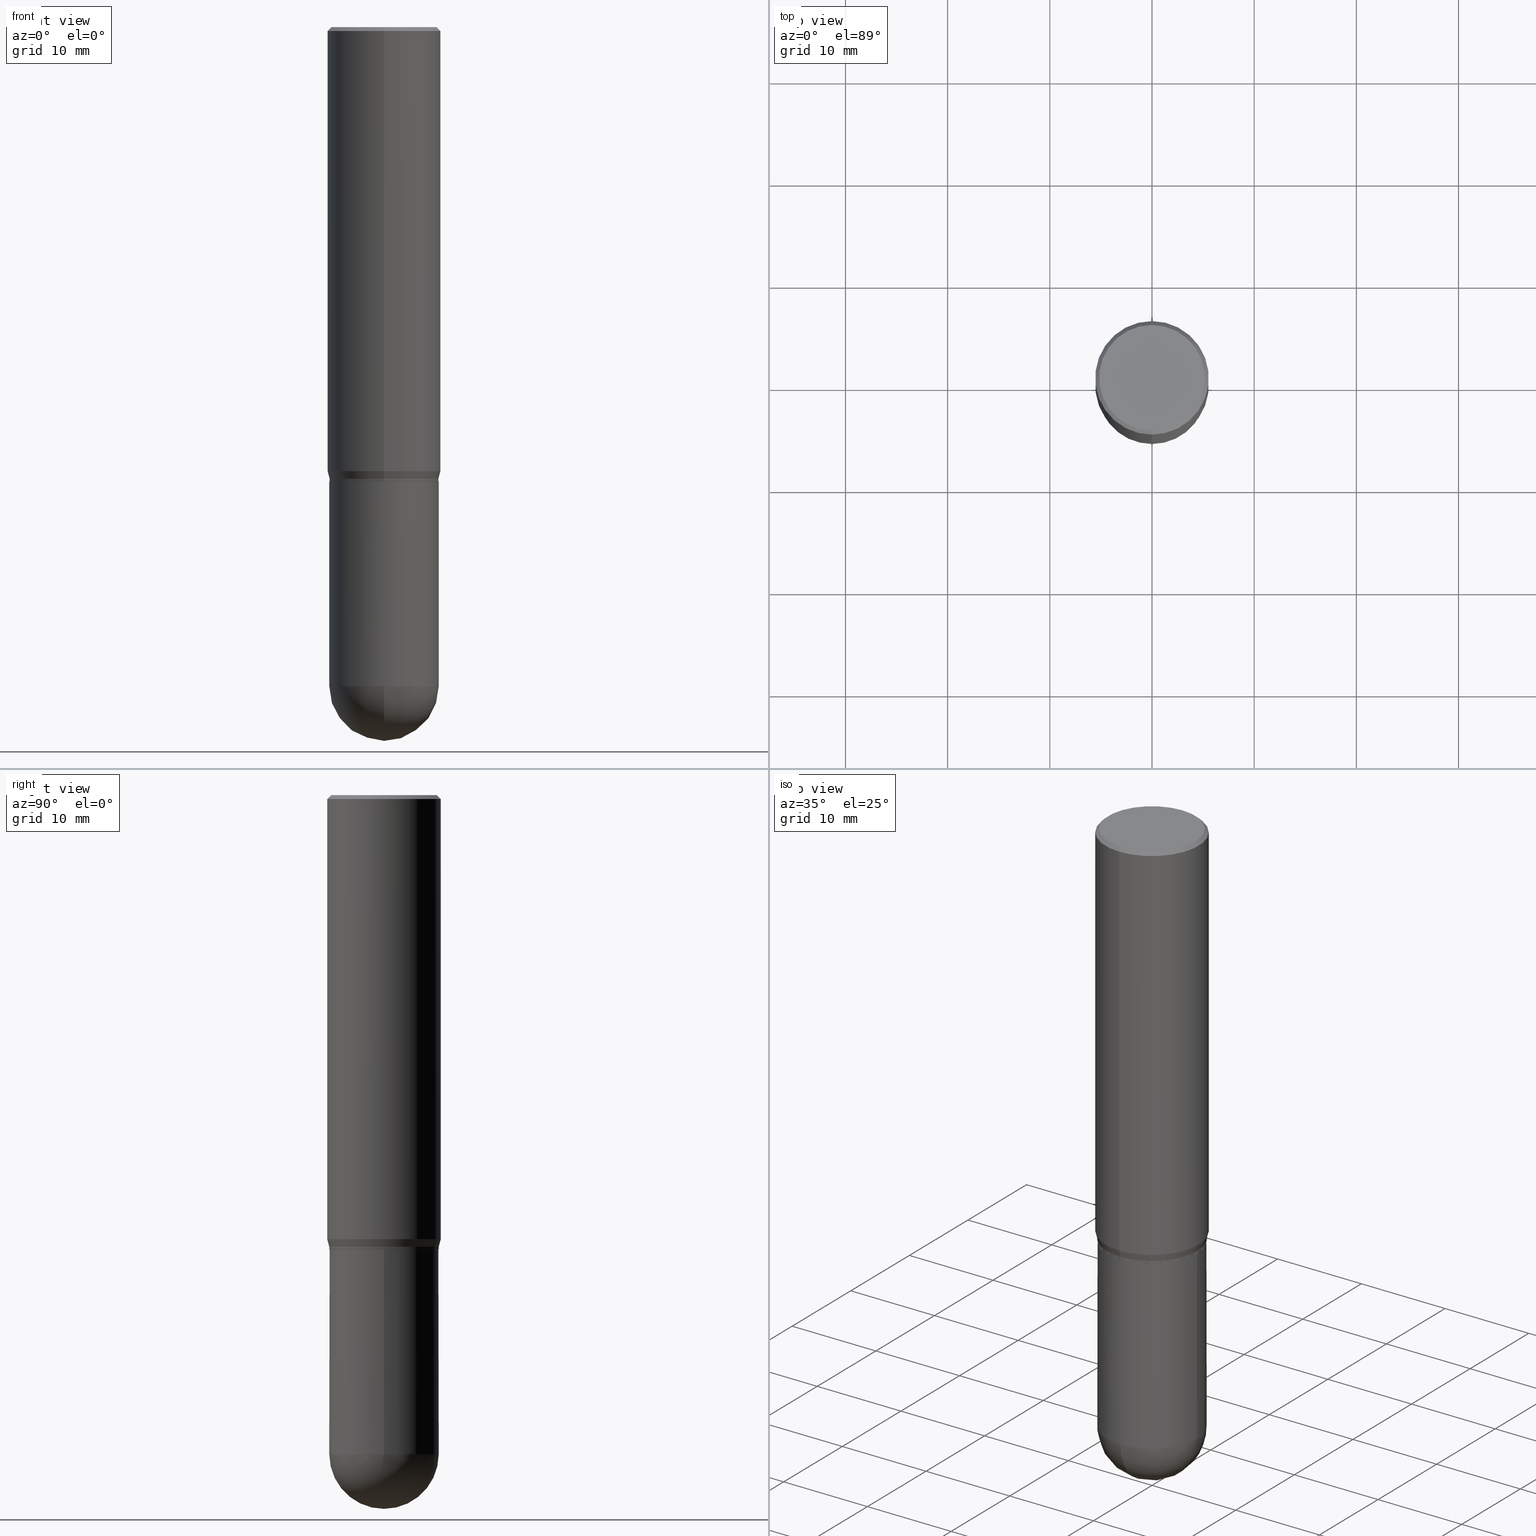
[diagram: canonical four-view strip — front | top / right | iso, engineering-drawing reading convention]
A machine part, canonical four-view strip (front | top / right | iso — engineering-drawing reading convention). The complete STEP part file that produces these views, byte-faithful:
ISO-10303-21;
HEADER;
FILE_DESCRIPTION (( 'STEP AP203' ),
    '1' );
FILE_NAME ('30057.STEP',
    '2024-03-08T15:17:26',
    ( '' ),
    ( '' ),
    'SwSTEP 2.0',
    'SolidWorks 2023',
    '' );
FILE_SCHEMA (( 'CONFIG_CONTROL_DESIGN' ));
ENDSEC;

DATA;
#1 = DIRECTION ( 'NONE',  ( -2.445224538422357859E-29, 3.491831144182302259E-15, 1.000000000000000000 ) ) ;
#2 = CIRCLE ( 'NONE', #443, 0.2109499999999999986 ) ;
#3 = AXIS2_PLACEMENT_3D ( 'NONE', #136, #253, #176 ) ;
#4 = DIRECTION ( 'NONE',  ( -6.982962677686265133E-15, -1.000000000000000000, 3.491831144182302259E-15 ) ) ;
#5 = ADVANCED_FACE ( 'NONE', ( #151 ), #233, .F. ) ;
#6 = DIRECTION ( 'NONE',  ( -2.445224538422357859E-29, 3.491831144182302259E-15, 1.000000000000000000 ) ) ;
#7 = CARTESIAN_POINT ( 'NONE',  ( 4.183510219591112166E-29, -5.974138999193196321E-15, -1.710890003700962669 ) ) ;
#8 = AXIS2_PLACEMENT_3D ( 'NONE', #244, #126, #11 ) ;
#9 = LINE ( 'NONE', #405, #19 ) ;
#10 = EDGE_CURVE ( 'NONE', #53, #455, #397, .T. ) ;
#11 = DIRECTION ( 'NONE',  ( 1.000000000000000000, -6.982962677686265133E-15, 0.000000000000000000 ) ) ;
#12 = DIRECTION ( 'NONE',  ( -6.982962677686265133E-15, -1.000000000000000000, 3.885064698266314873E-15 ) ) ;
#13 = DATE_TIME_ROLE ( 'creation_date' ) ;
#14 = ORIENTED_EDGE ( 'NONE', *, *, #391, .F. ) ;
#15 = EDGE_CURVE ( 'NONE', #210, #227, #303, .T. ) ;
#16 = CARTESIAN_POINT ( 'NONE',  ( 3.841295513378218841E-45, -5.485449330667966736E-31, -1.570937741307224074E-16 ) ) ;
#17 = CYLINDRICAL_SURFACE ( 'NONE', #425, 0.2109500000000000541 ) ;
#18 = PRODUCT_DEFINITION_SHAPE ( 'NONE', 'NONE',  #43 ) ;
#19 = VECTOR ( 'NONE', #49, 39.37007874015748143 ) ;
#20 = SECURITY_CLASSIFICATION ( '', '', #78 ) ;
#21 = ORIENTED_EDGE ( 'NONE', *, *, #268, .F. ) ;
#22 = LINE ( 'NONE', #261, #433 ) ;
#23 = CARTESIAN_POINT ( 'NONE',  ( -1.449280202029235538E-15, -0.2037499999999999867, 5.543668214964218588E-16 ) ) ;
#24 = EDGE_LOOP ( 'NONE', ( #262, #442, #14, #69 ) ) ;
#25 = LINE ( 'NONE', #495, #220 ) ;
#26 = EDGE_LOOP ( 'NONE', ( #347, #374, #255, #467, #267 ) ) ;
#27 = DIRECTION ( 'NONE',  ( 0.000000000000000000, 0.000000000000000000, 1.000000000000000000 ) ) ;
#28 = ORIENTED_EDGE ( 'NONE', *, *, #141, .F. ) ;
#29 = VERTEX_POINT ( 'NONE', #23 ) ;
#30 = AXIS2_PLACEMENT_3D ( 'NONE', #401, #204, #360 ) ;
#31 = VECTOR ( 'NONE', #373, 39.37007874015748143 ) ;
#32 = CARTESIAN_POINT ( 'NONE',  ( 6.209167572344372023E-29, -8.865045693389689499E-15, -2.539050000000000473 ) ) ;
#33 = ADVANCED_FACE ( 'NONE', ( #392 ), #240, .T. ) ;
#34 = DIRECTION ( 'NONE',  ( -2.445468806185136597E-29, 3.491481338843145583E-15, 1.000000000000000000 ) ) ;
#35 = APPROVAL_STATUS ( 'not_yet_approved' ) ;
#36 = EDGE_LOOP ( 'NONE', ( #178, #93 ) ) ;
#37 = DATE_TIME_ROLE ( 'classification_date' ) ;
#38 = ORIENTED_EDGE ( 'NONE', *, *, #510, .F. ) ;
#39 = VECTOR ( 'NONE', #106, 39.37007874015748854 ) ;
#40 = DIRECTION ( 'NONE',  ( 6.982962677686265133E-15, 1.000000000000000000, -2.590043132177541277E-15 ) ) ;
#41 = LOCAL_TIME ( 10, 17, 26.00000000000000000, #421 ) ;
#42 = FACE_OUTER_BOUND ( 'NONE', #189, .T. ) ;
#43 = PRODUCT_DEFINITION ( 'UNKNOWN', '', #348, #431 ) ;
#44 = PERSON_AND_ORGANIZATION_ROLE ( 'classification_officer' ) ;
#45 = CYLINDRICAL_SURFACE ( 'NONE', #228, 0.2109499999999999431 ) ;
#46 = CYLINDRICAL_SURFACE ( 'NONE', #456, 0.2109499999999999431 ) ;
#47 = CIRCLE ( 'NONE', #186, 0.2109499999999999431 ) ;
#48 = DIRECTION ( 'NONE',  ( -2.445224538422357859E-29, 3.491831144182302259E-15, 1.000000000000000000 ) ) ;
#49 = DIRECTION ( 'NONE',  ( -4.851104656540965064E-15, -0.7071067811865501263, -0.7071067811865449082 ) ) ;
#50 = ADVANCED_FACE ( 'NONE', ( #354 ), #324, .T. ) ;
#51 = AXIS2_PLACEMENT_3D ( 'NONE', #121, #96, #282 ) ;
#52 = DIRECTION ( 'NONE',  ( -1.000000000000000000, 7.105427357601001070E-15, -4.926315508542082329E-29 ) ) ;
#53 = VERTEX_POINT ( 'NONE', #103 ) ;
#54 = ORIENTED_EDGE ( 'NONE', *, *, #90, .T. ) ;
#55 = UNCERTAINTY_MEASURE_WITH_UNIT (LENGTH_MEASURE( 1.000000000000000082E-05 ), #293, 'distance_accuracy_value', 'NONE');
#56 = LINE ( 'NONE', #489, #81 ) ;
#57 = ORIENTED_EDGE ( 'NONE', *, *, #488, .F. ) ;
#58 = CLOSED_SHELL ( 'NONE', ( #88, #163, #271, #316, #416 ) ) ;
#59 = ADVANCED_FACE ( 'NONE', ( #506 ), #438, .T. ) ;
#60 = LOCAL_TIME ( 10, 17, 26.00000000000000000, #355 ) ;
#61 = ORIENTED_EDGE ( 'NONE', *, *, #313, .F. ) ;
#62 = COORDINATED_UNIVERSAL_TIME_OFFSET ( 5, 0, .BEHIND. ) ;
#63 = ORIENTED_EDGE ( 'NONE', *, *, #409, .F. ) ;
#64 = CARTESIAN_POINT ( 'NONE',  ( 1.498889901085973142E-15, 0.2109499999999938646, -1.740000000000000879 ) ) ;
#65 = CARTESIAN_POINT ( 'NONE',  ( 4.254690696854903488E-29, -6.075786190877206191E-15, -1.739999999999999991 ) ) ;
#66 = DIRECTION ( 'NONE',  ( -2.445224538422357859E-29, 3.491831144182302653E-15, 1.000000000000000000 ) ) ;
#67 = ORIENTED_EDGE ( 'NONE', *, *, #236, .T. ) ;
#68 = ORIENTED_EDGE ( 'NONE', *, *, #246, .F. ) ;
#69 = ORIENTED_EDGE ( 'NONE', *, *, #122, .F. ) ;
#70 = DIRECTION ( 'NONE',  ( -2.445224538422357859E-29, 3.491831144182302259E-15, 1.000000000000000000 ) ) ;
#71 = CARTESIAN_POINT ( 'NONE',  ( 4.254690696854903488E-29, -6.075786190877206191E-15, -1.739999999999999991 ) ) ;
#72 = CALENDAR_DATE ( 2024, 8, 3 ) ;
#73 = CIRCLE ( 'NONE', #92, 0.2187500000000000000 ) ;
#74 = AXIS2_PLACEMENT_3D ( 'NONE', #410, #132, #12 ) ;
#75 = ORIENTED_EDGE ( 'NONE', *, *, #192, .F. ) ;
#76 = ADVANCED_FACE ( 'NONE', ( #465 ), #109, .F. ) ;
#77 = ORIENTED_EDGE ( 'NONE', *, *, #86, .F. ) ;
#78 = SECURITY_CLASSIFICATION_LEVEL ( 'unclassified' ) ;
#79 = VERTEX_POINT ( 'NONE', #364 ) ;
#80 = ADVANCED_FACE ( 'NONE', ( #403 ), #45, .T. ) ;
#81 = VECTOR ( 'NONE', #131, 39.37007874015748854 ) ;
#82 = CARTESIAN_POINT ( 'NONE',  ( -1.527523085743870449E-15, -0.2187500000000000000, 7.638380627898786315E-16 ) ) ;
#83 = PERSON_AND_ORGANIZATION ( #207, #474 ) ;
#84 = DIRECTION ( 'NONE',  ( 1.000000000000000000, -6.982962677686265922E-15, 4.876176775795935793E-29 ) ) ;
#85 = DIRECTION ( 'NONE',  ( -2.445468806185136597E-29, 3.491481338843145583E-15, 1.000000000000000000 ) ) ;
#86 = EDGE_CURVE ( 'NONE', #408, #343, #73, .T. ) ;
#87 = AXIS2_PLACEMENT_3D ( 'NONE', #310, #148, #257 ) ;
#88 = ADVANCED_FACE ( 'NONE', ( #42 ), #116, .T. ) ;
#89 = CARTESIAN_POINT ( 'NONE',  ( 1.497113544246573482E-15, 0.2104499999999938920, -1.750000000000000666 ) ) ;
#90 = EDGE_CURVE ( 'NONE', #419, #378, #101, .T. ) ;
#91 = DIRECTION ( 'NONE',  ( -6.982962677686266711E-15, -1.000000000000000000, 3.894295072935514223E-15 ) ) ;
#92 = AXIS2_PLACEMENT_3D ( 'NONE', #472, #272, #206 ) ;
#93 = ORIENTED_EDGE ( 'NONE', *, *, #242, .T. ) ;
#94 = DIRECTION ( 'NONE',  ( -6.982962677686266711E-15, -1.000000000000000000, 3.894295072935514223E-15 ) ) ;
#95 = VERTEX_POINT ( 'NONE', #436 ) ;
#96 = DIRECTION ( 'NONE',  ( 2.438088387897960049E-29, -3.491481338843145188E-15, -1.000000000000000000 ) ) ;
#97 = ORIENTED_EDGE ( 'NONE', *, *, #402, .F. ) ;
#98 = DIRECTION ( 'NONE',  ( -6.982962677686265133E-15, -1.000000000000000000, 3.492862791899308071E-15 ) ) ;
#99 = PERSON_AND_ORGANIZATION ( #207, #474 ) ;
#100 = ORIENTED_EDGE ( 'NONE', *, *, #449, .T. ) ;
#101 = CIRCLE ( 'NONE', #30, 0.2187500000000000000 ) ;
#102 = CIRCLE ( 'NONE', #318, 0.2109499999999999986 ) ;
#103 = CARTESIAN_POINT ( 'NONE',  ( -1.498889901085869604E-15, -0.2109500000000089637, -2.539049999999999585 ) ) ;
#104 = CARTESIAN_POINT ( 'NONE',  ( 0.000000000000000000, 0.000000000000000000, 0.000000000000000000 ) ) ;
#105 = ORIENTED_EDGE ( 'NONE', *, *, #400, .F. ) ;
#106 = DIRECTION ( 'NONE',  ( 5.024295867788231995E-15, 0.7071067811865739960, 0.7071067811865208164 ) ) ;
#107 = PERSON_AND_ORGANIZATION ( #207, #474 ) ;
#108 = EDGE_CURVE ( 'NONE', #331, #182, #2, .T. ) ;
#109 = PLANE ( 'NONE',  #258 ) ;
#110 = CIRCLE ( 'NONE', #275, 0.2037499999999999867 ) ;
#111 = ORIENTED_EDGE ( 'NONE', *, *, #268, .T. ) ;
#112 = CARTESIAN_POINT ( 'NONE',  ( 0.000000000000000000, 0.000000000000000000, 0.000000000000000000 ) ) ;
#113 = CC_DESIGN_APPROVAL ( #250, ( #348 ) ) ;
#114 = DIRECTION ( 'NONE',  ( -6.982962677686265133E-15, -1.000000000000000000, 3.491831144182302259E-15 ) ) ;
#115 = PERSON_AND_ORGANIZATION ( #207, #474 ) ;
#116 = CYLINDRICAL_SURFACE ( 'NONE', #245, 0.2109500000000000541 ) ;
#117 = CC_DESIGN_DATE_AND_TIME_ASSIGNMENT ( #435, #37, ( #20 ) ) ;
#118 = DIRECTION ( 'NONE',  ( -2.445468806185136877E-29, 3.491481338843145188E-15, 1.000000000000000000 ) ) ;
#119 = CLOSED_SHELL ( 'NONE', ( #80, #33, #395, #147, #50, #426, #434, #59, #5, #76, #471, #159 ) ) ;
#120 = CC_DESIGN_APPROVAL ( #279, ( #43 ) ) ;
#121 = CARTESIAN_POINT ( 'NONE',  ( 1.473055976857960361E-15, 0.2109499999999938924, -1.750000000000000666 ) ) ;
#122 = EDGE_CURVE ( 'NONE', #408, #378, #475, .T. ) ;
#123 = PLANE ( 'NONE',  #51 ) ;
#124 = EDGE_LOOP ( 'NONE', ( #61, #28, #265, #54 ) ) ;
#125 = DIRECTION ( 'NONE',  ( 1.839019923739602287E-15, 0.2588190451025252359, 0.9659258262890670910 ) ) ;
#126 = DIRECTION ( 'NONE',  ( -2.445468806185136597E-29, 3.491481338843145583E-15, 1.000000000000000000 ) ) ;
#127 = CIRCLE ( 'NONE', #162, 0.2037499999999999867 ) ;
#128 = APPROVAL_STATUS ( 'not_yet_approved' ) ;
#129 = ORIENTED_EDGE ( 'NONE', *, *, #313, .T. ) ;
#130 = VECTOR ( 'NONE', #197, 39.37007874015748854 ) ;
#131 = DIRECTION ( 'NONE',  ( -4.937700262164715281E-15, -0.7071067811865691111, 0.7071067811865257013 ) ) ;
#132 = DIRECTION ( 'NONE',  ( -2.445224538422357859E-29, 3.491831144182302259E-15, 1.000000000000000000 ) ) ;
#133 = ORIENTED_EDGE ( 'NONE', *, *, #488, .T. ) ;
#134 = LINE ( 'NONE', #64, #346 ) ;
#135 = APPLICATION_PROTOCOL_DEFINITION ( 'international standard', 'config_control_design', 1994, #480 ) ;
#136 = CARTESIAN_POINT ( 'NONE',  ( 4.277920329969914621E-29, -6.108958586746937238E-15, -1.749500000000000055 ) ) ;
#137 = ORIENTED_EDGE ( 'NONE', *, *, #184, .F. ) ;
#138 =( NAMED_UNIT ( * ) PLANE_ANGLE_UNIT ( ) SI_UNIT ( $, .RADIAN. ) );
#139 = EDGE_LOOP ( 'NONE', ( #63, #187, #503, #491 ) ) ;
#140 = CIRCLE ( 'NONE', #432, 0.2104499999999999982 ) ;
#141 = EDGE_CURVE ( 'NONE', #502, #29, #127, .T. ) ;
#142 = LINE ( 'NONE', #441, #130 ) ;
#143 = DIRECTION ( 'NONE',  ( 1.000000000000000000, -6.982962677686265133E-15, 0.000000000000000000 ) ) ;
#144 = LENGTH_MEASURE_WITH_UNIT ( LENGTH_MEASURE( 0.02539999999999999897 ), #177 );
#145 = DIRECTION ( 'NONE',  ( -2.445468806185136597E-29, 3.491481338843145583E-15, 1.000000000000000000 ) ) ;
#146 = DIRECTION ( 'NONE',  ( -6.982962677686265133E-15, -1.000000000000000000, 3.885064698266314873E-15 ) ) ;
#147 = ADVANCED_FACE ( 'NONE', ( #511 ), #476, .T. ) ;
#148 = DIRECTION ( 'NONE',  ( 2.445224538422357859E-29, -3.491831144182302259E-15, -1.000000000000000000 ) ) ;
#149 = AXIS2_PLACEMENT_3D ( 'NONE', #193, #70, #387 ) ;
#150 = DIRECTION ( 'NONE',  ( 1.000000000000000000, -6.982962677686265133E-15, 0.000000000000000000 ) ) ;
#151 = FACE_OUTER_BOUND ( 'NONE', #36, .T. ) ;
#152 = CALENDAR_DATE ( 2024, 8, 3 ) ;
#153 = CARTESIAN_POINT ( 'NONE',  ( 0.2109499999999999986, -7.583148319833423025E-15, -1.750000000000000000 ) ) ;
#154 = DIRECTION ( 'NONE',  ( -1.000000000000000000, 6.982962677686265133E-15, -4.883557194083112340E-29 ) ) ;
#155 = APPROVAL_DATE_TIME ( #390, #328 ) ;
#156 = AXIS2_PLACEMENT_3D ( 'NONE', #320, #154, #40 ) ;
#157 = CIRCLE ( 'NONE', #444, 0.2187500000000000000 ) ;
#158 = SPHERICAL_SURFACE ( 'NONE', #156, 0.2109500000000001096 ) ;
#159 = ADVANCED_FACE ( 'NONE', ( #276 ), #46, .T. ) ;
#160 = FACE_OUTER_BOUND ( 'NONE', #353, .T. ) ;
#161 = DIRECTION ( 'NONE',  ( -2.445224538422357859E-29, 3.491831144182302259E-15, 1.000000000000000000 ) ) ;
#162 = AXIS2_PLACEMENT_3D ( 'NONE', #273, #161, #239 ) ;
#163 = ADVANCED_FACE ( 'NONE', ( #160 ), #158, .T. ) ;
#164 = FACE_OUTER_BOUND ( 'NONE', #301, .T. ) ;
#165 = CARTESIAN_POINT ( 'NONE',  ( -1.469564495519032157E-15, -0.2104500000000061044, -1.749999999999999112 ) ) ;
#166 = DIRECTION ( 'NONE',  ( -6.982962677686265133E-15, -1.000000000000000000, 3.491831144182302259E-15 ) ) ;
#167 = DATE_AND_TIME ( #72, #41 ) ;
#168 = ORIENTED_EDGE ( 'NONE', *, *, #285, .F. ) ;
#169 = DIRECTION ( 'NONE',  ( 1.000000000000000000, -6.982962677686265922E-15, 4.883557194083112340E-29 ) ) ;
#170 = DIRECTION ( 'NONE',  ( -2.445468806185136597E-29, 3.491481338843145583E-15, 1.000000000000000000 ) ) ;
#171 = AXIS2_PLACEMENT_3D ( 'NONE', #291, #52, #329 ) ;
#172 =( NAMED_UNIT ( * ) SI_UNIT ( $, .STERADIAN. ) SOLID_ANGLE_UNIT ( ) );
#173 = EDGE_LOOP ( 'NONE', ( #386, #129, #274, #312 ) ) ;
#174 = AXIS2_PLACEMENT_3D ( 'NONE', #104, #27, #330 ) ;
#175 = CC_DESIGN_PERSON_AND_ORGANIZATION_ASSIGNMENT ( #218, #263, ( #283 ) ) ;
#176 = DIRECTION ( 'NONE',  ( -6.982962677686265133E-15, -1.000000000000000000, 3.885064698266314873E-15 ) ) ;
#177 =( LENGTH_UNIT ( ) NAMED_UNIT ( * ) SI_UNIT ( $, .METRE. ) );
#178 = ORIENTED_EDGE ( 'NONE', *, *, #141, .T. ) ;
#179 = VERTEX_POINT ( 'NONE', #321 ) ;
#180 = EDGE_CURVE ( 'NONE', #179, #344, #278, .T. ) ;
#181 = CARTESIAN_POINT ( 'NONE',  ( -1.527523085743828442E-15, -0.2187500000000059397, -1.710890003700962003 ) ) ;
#182 = VERTEX_POINT ( 'NONE', #153 ) ;
#183 = CALENDAR_DATE ( 2024, 8, 3 ) ;
#184 = EDGE_CURVE ( 'NONE', #455, #247, #203, .T. ) ;
#185 = AXIS2_PLACEMENT_3D ( 'NONE', #71, #388, #146 ) ;
#186 = AXIS2_PLACEMENT_3D ( 'NONE', #65, #464, #422 ) ;
#187 = ORIENTED_EDGE ( 'NONE', *, *, #339, .T. ) ;
#188 = PERSON_AND_ORGANIZATION ( #207, #474 ) ;
#189 = EDGE_LOOP ( 'NONE', ( #306, #221, #57, #484, #424 ) ) ;
#190 = DIRECTION ( 'NONE',  ( -2.445224538422357859E-29, 3.491831144182302259E-15, 1.000000000000000000 ) ) ;
#191 = ORIENTED_EDGE ( 'NONE', *, *, #122, .T. ) ;
#192 = EDGE_CURVE ( 'NONE', #343, #408, #300, .T. ) ;
#193 = CARTESIAN_POINT ( 'NONE',  ( 4.279142942239125763E-29, -6.110704502319029052E-15, -1.750000000000000000 ) ) ;
#194 = EDGE_LOOP ( 'NONE', ( #337, #350, #77, #226 ) ) ;
#195 = AXIS2_PLACEMENT_3D ( 'NONE', #32, #34, #143 ) ;
#196 =( GEOMETRIC_REPRESENTATION_CONTEXT ( 3 ) GLOBAL_UNCERTAINTY_ASSIGNED_CONTEXT ( ( #55 ) ) GLOBAL_UNIT_ASSIGNED_CONTEXT ( ( #293, #138, #172 ) ) REPRESENTATION_CONTEXT ( 'NONE', 'WORKASPACE' ) );
#197 = DIRECTION ( 'NONE',  ( -1.807323732225332111E-15, -0.2588190451025184635, 0.9659258262890689783 ) ) ;
#198 = CARTESIAN_POINT ( 'NONE',  ( -1.473055976857917171E-15, -0.2109499999999999431, 7.366017798652564963E-16 ) ) ;
#199 = COORDINATED_UNIVERSAL_TIME_OFFSET ( 5, 0, .BEHIND. ) ;
#200 = COORDINATED_UNIVERSAL_TIME_OFFSET ( 5, 0, .BEHIND. ) ;
#201 = DIRECTION ( 'NONE',  ( -2.445468806185136597E-29, 3.491481338843145583E-15, 1.000000000000000000 ) ) ;
#202 = CC_DESIGN_PERSON_AND_ORGANIZATION_ASSIGNMENT ( #311, #508, ( #348 ) ) ;
#203 = CIRCLE ( 'NONE', #486, 0.2109500000000000541 ) ;
#204 = DIRECTION ( 'NONE',  ( -2.445224538422357859E-29, 3.491831144182302259E-15, 1.000000000000000000 ) ) ;
#205 = EDGE_CURVE ( 'NONE', #247, #394, #280, .T. ) ;
#206 = DIRECTION ( 'NONE',  ( -6.982962677686265133E-15, -1.000000000000000000, 3.746534391310989557E-15 ) ) ;
#207 = PERSON ( 'UNSPECIFIED', 'UNSPECIFIED', 'UNSPECIFIED', ('UNSPECIFIED'), ('UNSPECIFIED'), ('UNSPECIFIED') ) ;
#208 = CARTESIAN_POINT ( 'NONE',  ( 1.498889901085973931E-15, 0.2109499999999939202, -1.749500000000000721 ) ) ;
#209 = AXIS2_PLACEMENT_3D ( 'NONE', #440, #243, #91 ) ;
#210 = VERTEX_POINT ( 'NONE', #89 ) ;
#211 = DIRECTION ( 'NONE',  ( -6.982962677686265133E-15, -1.000000000000000000, 3.885064698266314873E-15 ) ) ;
#212 = DIRECTION ( 'NONE',  ( -2.445224538422357859E-29, 3.491831144182302259E-15, 1.000000000000000000 ) ) ;
#213 = ORIENTED_EDGE ( 'NONE', *, *, #400, .T. ) ;
#214 = CC_DESIGN_PERSON_AND_ORGANIZATION_ASSIGNMENT ( #115, #44, ( #20 ) ) ;
#215 = DIRECTION ( 'NONE',  ( -2.445224538422357859E-29, 3.491831144182302259E-15, 1.000000000000000000 ) ) ;
#216 = CYLINDRICAL_SURFACE ( 'NONE', #287, 0.2187500000000000000 ) ;
#217 = AXIS2_PLACEMENT_3D ( 'NONE', #112, #6, #314 ) ;
#218 = PERSON_AND_ORGANIZATION ( #207, #474 ) ;
#219 = ORIENTED_EDGE ( 'NONE', *, *, #15, .T. ) ;
#220 = VECTOR ( 'NONE', #66, 39.37007874015748143 ) ;
#221 = ORIENTED_EDGE ( 'NONE', *, *, #232, .T. ) ;
#222 = EDGE_LOOP ( 'NONE', ( #327, #411, #67, #288 ) ) ;
#223 = DIRECTION ( 'NONE',  ( -2.445224538422357859E-29, 3.491831144182302259E-15, 1.000000000000000000 ) ) ;
#224 = EDGE_CURVE ( 'NONE', #502, #419, #479, .T. ) ;
#225 = ORIENTED_EDGE ( 'NONE', *, *, #205, .F. ) ;
#226 = ORIENTED_EDGE ( 'NONE', *, *, #449, .F. ) ;
#227 = VERTEX_POINT ( 'NONE', #208 ) ;
#228 = AXIS2_PLACEMENT_3D ( 'NONE', #238, #48, #114 ) ;
#229 = CIRCLE ( 'NONE', #3, 0.2109499999999999431 ) ;
#230 = DIRECTION ( 'NONE',  ( 6.982962677686265922E-15, 1.000000000000000000, -3.491831144182302653E-15 ) ) ;
#231 = DATE_AND_TIME ( #359, #60 ) ;
#232 = EDGE_CURVE ( 'NONE', #394, #331, #445, .T. ) ;
#233 = PLANE ( 'NONE',  #412 ) ;
#234 = APPROVAL_DATE_TIME ( #231, #250 ) ;
#235 = CARTESIAN_POINT ( 'NONE',  ( 0.2109500000000000541, -8.960624995040515044E-15, -2.539050000000000473 ) ) ;
#236 = EDGE_CURVE ( 'NONE', #500, #179, #56, .T. ) ;
#237 = DIRECTION ( 'NONE',  ( 1.000000000000000000, -6.982962677686265133E-15, 0.000000000000000000 ) ) ;
#238 = CARTESIAN_POINT ( 'NONE',  ( 0.000000000000000000, 0.000000000000000000, 0.000000000000000000 ) ) ;
#239 = DIRECTION ( 'NONE',  ( -6.982962677686265133E-15, -1.000000000000000000, 3.491831144182301864E-15 ) ) ;
#240 = CONICAL_SURFACE ( 'NONE', #334, 0.2104499999999999982, 0.7853981633974824739 ) ;
#241 = APPROVAL_PERSON_ORGANIZATION ( #483, #250, #289 ) ;
#242 = EDGE_CURVE ( 'NONE', #29, #502, #110, .T. ) ;
#243 = DIRECTION ( 'NONE',  ( -2.445224538422357859E-29, 3.491831144182302259E-15, 1.000000000000000000 ) ) ;
#244 = CARTESIAN_POINT ( 'NONE',  ( 6.209167572344372023E-29, -8.865045693389689499E-15, -2.539050000000000473 ) ) ;
#245 = AXIS2_PLACEMENT_3D ( 'NONE', #277, #201, #84 ) ;
#246 = EDGE_CURVE ( 'NONE', #79, #53, #367, .T. ) ;
#247 = VERTEX_POINT ( 'NONE', #325 ) ;
#248 = FACE_OUTER_BOUND ( 'NONE', #462, .T. ) ;
#249 = FACE_OUTER_BOUND ( 'NONE', #26, .T. ) ;
#250 = APPROVAL ( #128, 'UNSPECIFIED' ) ;
#251 = MANIFOLD_SOLID_BREP ( 'Body-Move/Copy2[2]', #119 ) ;
#252 = CARTESIAN_POINT ( 'NONE',  ( -0.2109500000000000541, 1.498889901085931727E-15, -1.037649357289272662E-29 ) ) ;
#253 = DIRECTION ( 'NONE',  ( -2.445224538422357859E-29, 3.491831144182302259E-15, 1.000000000000000000 ) ) ;
#254 = MANIFOLD_SOLID_BREP ( 'Body-Move/Copy2[1]', #58 ) ;
#255 = ORIENTED_EDGE ( 'NONE', *, *, #10, .T. ) ;
#256 = CARTESIAN_POINT ( 'NONE',  ( 3.667836807633575149E-31, -5.237746716273508633E-17, -0.01500000000000015730 ) ) ;
#257 = DIRECTION ( 'NONE',  ( 6.982962677686265133E-15, 1.000000000000000000, -3.492862791899308071E-15 ) ) ;
#258 = AXIS2_PLACEMENT_3D ( 'NONE', #414, #380, #509 ) ;
#259 = ORIENTED_EDGE ( 'NONE', *, *, #180, .F. ) ;
#260 = AXIS2_PLACEMENT_3D ( 'NONE', #256, #383, #482 ) ;
#261 = CARTESIAN_POINT ( 'NONE',  ( 1.498889901085930741E-15, 0.2109499999999999431, -7.366017798652564963E-16 ) ) ;
#262 = ORIENTED_EDGE ( 'NONE', *, *, #86, .T. ) ;
#263 = PERSON_AND_ORGANIZATION_ROLE ( 'design_owner' ) ;
#264 = ORIENTED_EDGE ( 'NONE', *, *, #90, .F. ) ;
#265 = ORIENTED_EDGE ( 'NONE', *, *, #224, .T. ) ;
#266 = PERSON_AND_ORGANIZATION_ROLE ( 'creator' ) ;
#267 = ORIENTED_EDGE ( 'NONE', *, *, #108, .F. ) ;
#268 = EDGE_CURVE ( 'NONE', #500, #210, #140, .T. ) ;
#269 = AXIS2_PLACEMENT_3D ( 'NONE', #296, #453, #345 ) ;
#270 = EDGE_LOOP ( 'NONE', ( #111, #219, #105, #407 ) ) ;
#271 = ADVANCED_FACE ( 'NONE', ( #248 ), #123, .F. ) ;
#272 = DIRECTION ( 'NONE',  ( -2.445224538422357859E-29, 3.491831144182302259E-15, 1.000000000000000000 ) ) ;
#273 = CARTESIAN_POINT ( 'NONE',  ( 3.841295513378218841E-45, -5.485449330667966736E-31, -1.570937741307224074E-16 ) ) ;
#274 = ORIENTED_EDGE ( 'NONE', *, *, #391, .T. ) ;
#275 = AXIS2_PLACEMENT_3D ( 'NONE', #16, #215, #368 ) ;
#276 = FACE_OUTER_BOUND ( 'NONE', #139, .T. ) ;
#277 = CARTESIAN_POINT ( 'NONE',  ( 0.000000000000000000, 0.000000000000000000, 0.000000000000000000 ) ) ;
#278 = LINE ( 'NONE', #198, #423 ) ;
#279 = APPROVAL ( #463, 'UNSPECIFIED' ) ;
#280 = CIRCLE ( 'NONE', #8, 0.2109500000000000541 ) ;
#281 = LOCAL_TIME ( 10, 17, 26.00000000000000000, #199 ) ;
#282 = DIRECTION ( 'NONE',  ( -1.000000000000000000, 6.982962677686265922E-15, -4.876176775795935793E-29 ) ) ;
#283 = PRODUCT ( '30057', '30057', '', ( #459 ) ) ;
#284 = EDGE_LOOP ( 'NONE', ( #213, #496, #38, #259 ) ) ;
#285 = EDGE_CURVE ( 'NONE', #210, #500, #466, .T. ) ;
#286 = DIRECTION ( 'NONE',  ( -2.445224538422357859E-29, 3.491831144182302259E-15, 1.000000000000000000 ) ) ;
#287 = AXIS2_PLACEMENT_3D ( 'NONE', #376, #494, #166 ) ;
#288 = ORIENTED_EDGE ( 'NONE', *, *, #339, .F. ) ;
#289 = APPROVAL_ROLE ( '' ) ;
#290 = ORIENTED_EDGE ( 'NONE', *, *, #108, .T. ) ;
#291 = CARTESIAN_POINT ( 'NONE',  ( 6.191127839474132236E-29, -8.890879617617701491E-15, -2.539049999999999585 ) ) ;
#292 = FACE_OUTER_BOUND ( 'NONE', #294, .T. ) ;
#293 =( CONVERSION_BASED_UNIT ( 'INCH', #144 ) LENGTH_UNIT ( ) NAMED_UNIT ( #363 ) );
#294 = EDGE_LOOP ( 'NONE', ( #97, #469, #191, #264 ) ) ;
#295 = CARTESIAN_POINT ( 'NONE',  ( 6.191127839474132236E-29, -8.890879617617701491E-15, -2.539049999999999585 ) ) ;
#296 = CARTESIAN_POINT ( 'NONE',  ( 4.254690696854903488E-29, -6.075786190877206191E-15, -1.739999999999999991 ) ) ;
#297 = FACE_OUTER_BOUND ( 'NONE', #497, .T. ) ;
#298 = VECTOR ( 'NONE', #118, 39.37007874015748143 ) ;
#299 = CARTESIAN_POINT ( 'NONE',  ( 1.422778645578576487E-15, 0.2037499999999999867, -7.900074826925052850E-16 ) ) ;
#300 = CIRCLE ( 'NONE', #307, 0.2187500000000000000 ) ;
#301 = EDGE_LOOP ( 'NONE', ( #68, #450, #137, #304 ) ) ;
#302 = APPROVAL_PERSON_ORGANIZATION ( #99, #279, #385 ) ;
#303 = LINE ( 'NONE', #458, #39 ) ;
#304 = ORIENTED_EDGE ( 'NONE', *, *, #10, .F. ) ;
#305 = CC_DESIGN_DATE_AND_TIME_ASSIGNMENT ( #167, #13, ( #43 ) ) ;
#306 = ORIENTED_EDGE ( 'NONE', *, *, #205, .T. ) ;
#307 = AXIS2_PLACEMENT_3D ( 'NONE', #7, #286, #333 ) ;
#308 = LOCAL_TIME ( 10, 17, 26.00000000000000000, #200 ) ;
#309 = CARTESIAN_POINT ( 'NONE',  ( 4.279570410823988484E-29, -6.110092342975504671E-15, -1.750000000000000000 ) ) ;
#310 = CARTESIAN_POINT ( 'NONE',  ( 3.667836807633575149E-31, -5.237746716273508633E-17, -0.01500000000000015730 ) ) ;
#311 = PERSON_AND_ORGANIZATION ( #207, #474 ) ;
#312 = ORIENTED_EDGE ( 'NONE', *, *, #224, .F. ) ;
#313 = EDGE_CURVE ( 'NONE', #29, #378, #9, .T. ) ;
#314 = DIRECTION ( 'NONE',  ( -6.982962677686265133E-15, -1.000000000000000000, 3.491831144182302259E-15 ) ) ;
#315 = APPROVAL_ROLE ( '' ) ;
#316 = ADVANCED_FACE ( 'NONE', ( #164 ), #338, .T. ) ;
#317 = CARTESIAN_POINT ( 'NONE',  ( 6.209167572344372023E-29, -8.865045693389689499E-15, -2.539050000000000473 ) ) ;
#318 = AXIS2_PLACEMENT_3D ( 'NONE', #309, #429, #415 ) ;
#319 = APPLICATION_CONTEXT ( 'configuration controlled 3d designs of mechanical parts and assemblies' ) ;
#320 = CARTESIAN_POINT ( 'NONE',  ( 6.191127839474132236E-29, -8.890879617617701491E-15, -2.539049999999999585 ) ) ;
#321 = CARTESIAN_POINT ( 'NONE',  ( -1.473055976857874375E-15, -0.2109500000000059383, -1.749499999999999167 ) ) ;
#322 = ADVANCED_BREP_SHAPE_REPRESENTATION ( '30057', ( #254, #251, #174 ), #196 ) ;
#323 = EDGE_CURVE ( 'NONE', #95, #343, #134, .T. ) ;
#324 = CONICAL_SURFACE ( 'NONE', #185, 0.2109499999999999431, 0.2617993877991505736 ) ;
#325 = CARTESIAN_POINT ( 'NONE',  ( 1.473055976857980082E-15, 0.2109499999999912001, -2.539050000000000917 ) ) ;
#326 = CARTESIAN_POINT ( 'NONE',  ( 6.191127839474132236E-29, -8.890879617617701491E-15, -2.539049999999999585 ) ) ;
#327 = ORIENTED_EDGE ( 'NONE', *, *, #15, .F. ) ;
#328 = APPROVAL ( #35, 'UNSPECIFIED' ) ;
#329 = DIRECTION ( 'NONE',  ( -7.105427357601001070E-15, -1.000000000000000000, 0.000000000000000000 ) ) ;
#330 = DIRECTION ( 'NONE',  ( 1.000000000000000000, 0.000000000000000000, 0.000000000000000000 ) ) ;
#331 = VERTEX_POINT ( 'NONE', #492 ) ;
#332 = DIRECTION ( 'NONE',  ( 6.982962677686265922E-15, 1.000000000000000000, 0.000000000000000000 ) ) ;
#333 = DIRECTION ( 'NONE',  ( -6.982962677686265133E-15, -1.000000000000000000, 3.746534391310989557E-15 ) ) ;
#334 = AXIS2_PLACEMENT_3D ( 'NONE', #427, #190, #420 ) ;
#335 = DIRECTION ( 'NONE',  ( 1.000000000000000000, -6.982962677686265922E-15, 4.876176775795935793E-29 ) ) ;
#336 = CONICAL_SURFACE ( 'NONE', #149, 0.2104499999999999982, 0.7853981633974824739 ) ;
#337 = ORIENTED_EDGE ( 'NONE', *, *, #510, .T. ) ;
#338 = SPHERICAL_SURFACE ( 'NONE', #498, 0.2109500000000001096 ) ;
#339 = EDGE_CURVE ( 'NONE', #227, #179, #389, .T. ) ;
#340 = CARTESIAN_POINT ( 'NONE',  ( 0.000000000000000000, 0.000000000000000000, 0.000000000000000000 ) ) ;
#341 = ORIENTED_EDGE ( 'NONE', *, *, #437, .T. ) ;
#342 = CARTESIAN_POINT ( 'NONE',  ( -0.2109500000000000541, -5.988679117096665555E-15, -2.539050000000000473 ) ) ;
#343 = VERTEX_POINT ( 'NONE', #372 ) ;
#344 = VERTEX_POINT ( 'NONE', #382 ) ;
#345 = DIRECTION ( 'NONE',  ( -6.982962677686265133E-15, -1.000000000000000000, 3.885064698266314873E-15 ) ) ;
#346 = VECTOR ( 'NONE', #125, 39.37007874015748143 ) ;
#347 = ORIENTED_EDGE ( 'NONE', *, *, #232, .F. ) ;
#348 = PRODUCT_DEFINITION_FORMATION_WITH_SPECIFIED_SOURCE ( 'ANY', '', #283, .NOT_KNOWN. ) ;
#349 = DATE_AND_TIME ( #183, #468 ) ;
#350 = ORIENTED_EDGE ( 'NONE', *, *, #323, .T. ) ;
#351 = SHAPE_DEFINITION_REPRESENTATION ( #18, #322 ) ;
#352 = EDGE_CURVE ( 'NONE', #79, #247, #377, .T. ) ;
#353 = EDGE_LOOP ( 'NONE', ( #358, #418, #481, #225 ) ) ;
#354 = FACE_OUTER_BOUND ( 'NONE', #194, .T. ) ;
#355 = COORDINATED_UNIVERSAL_TIME_OFFSET ( 5, 0, .BEHIND. ) ;
#356 = AXIS2_PLACEMENT_3D ( 'NONE', #505, #145, #150 ) ;
#357 = DIRECTION ( 'NONE',  ( -2.445224538422357859E-29, 3.491831144182302653E-15, 1.000000000000000000 ) ) ;
#358 = ORIENTED_EDGE ( 'NONE', *, *, #352, .F. ) ;
#359 = CALENDAR_DATE ( 2024, 8, 3 ) ;
#360 = DIRECTION ( 'NONE',  ( -6.982962677686265133E-15, -1.000000000000000000, 3.492862791899308071E-15 ) ) ;
#361 = VECTOR ( 'NONE', #396, 39.37007874015748143 ) ;
#362 = CIRCLE ( 'NONE', #269, 0.2109499999999999431 ) ;
#363 = DIMENSIONAL_EXPONENTS ( 1.000000000000000000, 0.000000000000000000, 0.000000000000000000, 0.000000000000000000, 0.000000000000000000, 0.000000000000000000, 0.000000000000000000 ) ;
#364 = CARTESIAN_POINT ( 'NONE',  ( 6.716019350574006308E-29, -9.614490643932656644E-15, -2.750000000000000000 ) ) ;
#365 = PRODUCT_RELATED_PRODUCT_CATEGORY ( 'detail', '', ( #283 ) ) ;
#366 = CARTESIAN_POINT ( 'NONE',  ( 4.279570410823988484E-29, -6.110092342975504671E-15, -1.750000000000000000 ) ) ;
#367 = CIRCLE ( 'NONE', #171, 0.2109500000000001096 ) ;
#368 = DIRECTION ( 'NONE',  ( -6.982962677686265133E-15, -1.000000000000000000, 3.491831144182301864E-15 ) ) ;
#369 = CC_DESIGN_PERSON_AND_ORGANIZATION_ASSIGNMENT ( #107, #266, ( #43 ) ) ;
#370 = CARTESIAN_POINT ( 'NONE',  ( 1.527523085743871040E-15, 0.2187499999999999167, -0.01500000000000092232 ) ) ;
#371 = FACE_OUTER_BOUND ( 'NONE', #173, .T. ) ;
#372 = CARTESIAN_POINT ( 'NONE',  ( 1.554312234475260769E-15, 0.2187499999999940603, -1.710890003700963558 ) ) ;
#373 = DIRECTION ( 'NONE',  ( -2.445468806185136877E-29, 3.491481338843145188E-15, 1.000000000000000000 ) ) ;
#374 = ORIENTED_EDGE ( 'NONE', *, *, #477, .T. ) ;
#375 = DIRECTION ( 'NONE',  ( -2.445224538422357859E-29, 3.491831144182302259E-15, 1.000000000000000000 ) ) ;
#376 = CARTESIAN_POINT ( 'NONE',  ( 0.000000000000000000, 0.000000000000000000, 0.000000000000000000 ) ) ;
#377 = CIRCLE ( 'NONE', #406, 0.2109500000000001096 ) ;
#378 = VERTEX_POINT ( 'NONE', #485 ) ;
#379 = CARTESIAN_POINT ( 'NONE',  ( 3.667836807633575149E-31, -5.237746716273508633E-17, -0.01500000000000015730 ) ) ;
#380 = DIRECTION ( 'NONE',  ( -2.445224538422357299E-29, 3.491831144182302653E-15, 1.000000000000000000 ) ) ;
#381 = APPROVAL_DATE_TIME ( #349, #279 ) ;
#382 = CARTESIAN_POINT ( 'NONE',  ( -1.473055976857874769E-15, -0.2109500000000060216, -1.739999999999999103 ) ) ;
#383 = DIRECTION ( 'NONE',  ( 2.445224538422357859E-29, -3.491831144182302259E-15, -1.000000000000000000 ) ) ;
#384 = DIRECTION ( 'NONE',  ( 2.445224538422357299E-29, -3.491831144182302653E-15, -1.000000000000000000 ) ) ;
#385 = APPROVAL_ROLE ( '' ) ;
#386 = ORIENTED_EDGE ( 'NONE', *, *, #242, .F. ) ;
#387 = DIRECTION ( 'NONE',  ( -6.982962677686266711E-15, -1.000000000000000000, 3.894295072935514223E-15 ) ) ;
#388 = DIRECTION ( 'NONE',  ( -2.445224538422357859E-29, 3.491831144182302259E-15, 1.000000000000000000 ) ) ;
#389 = CIRCLE ( 'NONE', #439, 0.2109499999999999431 ) ;
#390 = DATE_AND_TIME ( #152, #281 ) ;
#391 = EDGE_CURVE ( 'NONE', #378, #419, #157, .T. ) ;
#392 = FACE_OUTER_BOUND ( 'NONE', #270, .T. ) ;
#393 = CALENDAR_DATE ( 2024, 8, 3 ) ;
#394 = VERTEX_POINT ( 'NONE', #342 ) ;
#395 = ADVANCED_FACE ( 'NONE', ( #371 ), #499, .T. ) ;
#396 = DIRECTION ( 'NONE',  ( -2.445224538422357859E-29, 3.491831144182302653E-15, 1.000000000000000000 ) ) ;
#397 = CIRCLE ( 'NONE', #195, 0.2109500000000000541 ) ;
#398 = CC_DESIGN_APPROVAL ( #328, ( #20 ) ) ;
#399 = DIRECTION ( 'NONE',  ( 1.000000000000000000, -6.982962677686266711E-15, 0.000000000000000000 ) ) ;
#400 = EDGE_CURVE ( 'NONE', #179, #227, #229, .T. ) ;
#401 = CARTESIAN_POINT ( 'NONE',  ( 3.667836807633575149E-31, -5.237746716273508633E-17, -0.01500000000000015730 ) ) ;
#402 = EDGE_CURVE ( 'NONE', #343, #419, #25, .T. ) ;
#403 = FACE_OUTER_BOUND ( 'NONE', #284, .T. ) ;
#404 = EDGE_CURVE ( 'NONE', #455, #182, #446, .T. ) ;
#405 = CARTESIAN_POINT ( 'NONE',  ( -1.500733937012521740E-15, -0.2187500000000000555, -0.01499999999999939403 ) ) ;
#406 = AXIS2_PLACEMENT_3D ( 'NONE', #326, #169, #332 ) ;
#407 = ORIENTED_EDGE ( 'NONE', *, *, #236, .F. ) ;
#408 = VERTEX_POINT ( 'NONE', #181 ) ;
#409 = EDGE_CURVE ( 'NONE', #227, #95, #22, .T. ) ;
#410 = CARTESIAN_POINT ( 'NONE',  ( 4.254690696854903488E-29, -6.075786190877206191E-15, -1.739999999999999991 ) ) ;
#411 = ORIENTED_EDGE ( 'NONE', *, *, #285, .T. ) ;
#412 = AXIS2_PLACEMENT_3D ( 'NONE', #299, #384, #230 ) ;
#413 = CC_DESIGN_SECURITY_CLASSIFICATION ( #20, ( #348 ) ) ;
#414 = CARTESIAN_POINT ( 'NONE',  ( 4.279142942239125763E-29, -6.110704502319029052E-15, -1.750000000000000000 ) ) ;
#415 = DIRECTION ( 'NONE',  ( 1.000000000000000000, -6.982962677686266711E-15, 0.000000000000000000 ) ) ;
#416 = ADVANCED_FACE ( 'NONE', ( #249 ), #17, .T. ) ;
#417 = CARTESIAN_POINT ( 'NONE',  ( 1.554312234475260966E-15, 0.2187499999999999167, -0.01500000000000092232 ) ) ;
#418 = ORIENTED_EDGE ( 'NONE', *, *, #246, .T. ) ;
#419 = VERTEX_POINT ( 'NONE', #417 ) ;
#420 = DIRECTION ( 'NONE',  ( -6.982962677686266711E-15, -1.000000000000000000, 3.894295072935514223E-15 ) ) ;
#421 = COORDINATED_UNIVERSAL_TIME_OFFSET ( 5, 0, .BEHIND. ) ;
#422 = DIRECTION ( 'NONE',  ( -6.982962677686265133E-15, -1.000000000000000000, 3.885064698266314873E-15 ) ) ;
#423 = VECTOR ( 'NONE', #357, 39.37007874015748143 ) ;
#424 = ORIENTED_EDGE ( 'NONE', *, *, #184, .T. ) ;
#425 = AXIS2_PLACEMENT_3D ( 'NONE', #340, #170, #335 ) ;
#426 = ADVANCED_FACE ( 'NONE', ( #297 ), #487, .T. ) ;
#427 = CARTESIAN_POINT ( 'NONE',  ( 4.279142942239125763E-29, -6.110704502319029052E-15, -1.750000000000000000 ) ) ;
#428 = CC_DESIGN_PERSON_AND_ORGANIZATION_ASSIGNMENT ( #83, #512, ( #348 ) ) ;
#429 = DIRECTION ( 'NONE',  ( -2.445468806185136597E-29, 3.491481338843145583E-15, 1.000000000000000000 ) ) ;
#430 = CARTESIAN_POINT ( 'NONE',  ( 0.000000000000000000, 0.000000000000000000, 0.000000000000000000 ) ) ;
#431 = DESIGN_CONTEXT ( 'detailed design', #319, 'design' ) ;
#432 = AXIS2_PLACEMENT_3D ( 'NONE', #478, #375, #94 ) ;
#433 = VECTOR ( 'NONE', #490, 39.37007874015748143 ) ;
#434 = ADVANCED_FACE ( 'NONE', ( #292 ), #216, .T. ) ;
#435 = DATE_AND_TIME ( #393, #308 ) ;
#436 = CARTESIAN_POINT ( 'NONE',  ( 1.526601067780616758E-15, 0.2109499999999938646, -1.740000000000000879 ) ) ;
#437 = EDGE_CURVE ( 'NONE', #95, #344, #362, .T. ) ;
#438 = CONICAL_SURFACE ( 'NONE', #87, 0.2187500000000000000, 0.7853981633974485010 ) ;
#439 = AXIS2_PLACEMENT_3D ( 'NONE', #451, #223, #211 ) ;
#440 = CARTESIAN_POINT ( 'NONE',  ( 4.279142942239125763E-29, -6.110704502319029052E-15, -1.750000000000000000 ) ) ;
#441 = CARTESIAN_POINT ( 'NONE',  ( -1.473055976857874769E-15, -0.2109500000000060216, -1.739999999999999103 ) ) ;
#442 = ORIENTED_EDGE ( 'NONE', *, *, #402, .T. ) ;
#443 = AXIS2_PLACEMENT_3D ( 'NONE', #366, #85, #399 ) ;
#444 = AXIS2_PLACEMENT_3D ( 'NONE', #379, #212, #98 ) ;
#445 = LINE ( 'NONE', #252, #298 ) ;
#446 = LINE ( 'NONE', #448, #31 ) ;
#447 = DIRECTION ( 'NONE',  ( 4.937700262164548831E-15, 0.7071067811865452413, -0.7071067811865497932 ) ) ;
#448 = CARTESIAN_POINT ( 'NONE',  ( 0.2109500000000000541, -1.473055976857918157E-15, 1.028629490854152908E-29 ) ) ;
#449 = EDGE_CURVE ( 'NONE', #344, #408, #142, .T. ) ;
#450 = ORIENTED_EDGE ( 'NONE', *, *, #352, .T. ) ;
#451 = CARTESIAN_POINT ( 'NONE',  ( 4.277920329969914621E-29, -6.108958586746937238E-15, -1.749500000000000055 ) ) ;
#452 = DIRECTION ( 'NONE',  ( 6.982962677686265133E-15, 1.000000000000000000, -2.590043132177541277E-15 ) ) ;
#453 = DIRECTION ( 'NONE',  ( -2.445224538422357859E-29, 3.491831144182302259E-15, 1.000000000000000000 ) ) ;
#454 = APPLICATION_PROTOCOL_DEFINITION ( 'international standard', 'config_control_design', 1994, #319 ) ;
#455 = VERTEX_POINT ( 'NONE', #235 ) ;
#456 = AXIS2_PLACEMENT_3D ( 'NONE', #430, #1, #4 ) ;
#457 = CIRCLE ( 'NONE', #356, 0.2109500000000000541 ) ;
#458 = CARTESIAN_POINT ( 'NONE',  ( 1.495337187407173427E-15, 0.2104499999999938920, -1.750000000000000666 ) ) ;
#459 = MECHANICAL_CONTEXT ( 'NONE', #480, 'mechanical' ) ;
#460 = ORIENTED_EDGE ( 'NONE', *, *, #323, .F. ) ;
#461 = FACE_OUTER_BOUND ( 'NONE', #222, .T. ) ;
#462 = EDGE_LOOP ( 'NONE', ( #133, #290 ) ) ;
#463 = APPROVAL_STATUS ( 'not_yet_approved' ) ;
#464 = DIRECTION ( 'NONE',  ( -2.445224538422357859E-29, 3.491831144182302259E-15, 1.000000000000000000 ) ) ;
#465 = FACE_OUTER_BOUND ( 'NONE', #504, .T. ) ;
#466 = CIRCLE ( 'NONE', #209, 0.2104499999999999982 ) ;
#467 = ORIENTED_EDGE ( 'NONE', *, *, #404, .T. ) ;
#468 = LOCAL_TIME ( 10, 17, 26.00000000000000000, #62 ) ;
#469 = ORIENTED_EDGE ( 'NONE', *, *, #192, .T. ) ;
#470 = DIRECTION ( 'NONE',  ( -2.445468806185136597E-29, 3.491481338843145583E-15, 1.000000000000000000 ) ) ;
#471 = ADVANCED_FACE ( 'NONE', ( #461 ), #336, .T. ) ;
#472 = CARTESIAN_POINT ( 'NONE',  ( 4.183510219591112166E-29, -5.974138999193196321E-15, -1.710890003700962669 ) ) ;
#473 = VECTOR ( 'NONE', #447, 39.37007874015748143 ) ;
#474 = ORGANIZATION ( 'UNSPECIFIED', 'UNSPECIFIED', '' ) ;
#475 = LINE ( 'NONE', #82, #361 ) ;
#476 = CYLINDRICAL_SURFACE ( 'NONE', #217, 0.2187500000000000000 ) ;
#477 = EDGE_CURVE ( 'NONE', #394, #53, #457, .T. ) ;
#478 = CARTESIAN_POINT ( 'NONE',  ( 4.279142942239125763E-29, -6.110704502319029052E-15, -1.750000000000000000 ) ) ;
#479 = LINE ( 'NONE', #370, #473 ) ;
#480 = APPLICATION_CONTEXT ( 'configuration controlled 3d designs of mechanical parts and assemblies' ) ;
#481 = ORIENTED_EDGE ( 'NONE', *, *, #477, .F. ) ;
#482 = DIRECTION ( 'NONE',  ( 6.982962677686265133E-15, 1.000000000000000000, -3.492862791899308071E-15 ) ) ;
#483 = PERSON_AND_ORGANIZATION ( #207, #474 ) ;
#484 = ORIENTED_EDGE ( 'NONE', *, *, #404, .F. ) ;
#485 = CARTESIAN_POINT ( 'NONE',  ( -1.527523085743870054E-15, -0.2187500000000000555, -0.01499999999999939403 ) ) ;
#486 = AXIS2_PLACEMENT_3D ( 'NONE', #317, #470, #237 ) ;
#487 = CONICAL_SURFACE ( 'NONE', #74, 0.2109499999999999431, 0.2617993877991505736 ) ;
#488 = EDGE_CURVE ( 'NONE', #182, #331, #102, .T. ) ;
#489 = CARTESIAN_POINT ( 'NONE',  ( -1.469564495519032157E-15, -0.2104500000000061044, -1.749999999999999112 ) ) ;
#490 = DIRECTION ( 'NONE',  ( -2.445224538422357859E-29, 3.491831144182302653E-15, 1.000000000000000000 ) ) ;
#491 = ORIENTED_EDGE ( 'NONE', *, *, #437, .F. ) ;
#492 = CARTESIAN_POINT ( 'NONE',  ( -0.2109499999999999986, -5.988679117096665555E-15, -1.750000000000000000 ) ) ;
#493 = DIRECTION ( 'NONE',  ( -1.000000000000000000, 6.982962677686265133E-15, -4.883557194083112340E-29 ) ) ;
#494 = DIRECTION ( 'NONE',  ( -2.445224538422357859E-29, 3.491831144182302259E-15, 1.000000000000000000 ) ) ;
#495 = CARTESIAN_POINT ( 'NONE',  ( 1.554312234475218762E-15, 0.2187500000000000000, -7.638380627898786315E-16 ) ) ;
#496 = ORIENTED_EDGE ( 'NONE', *, *, #409, .T. ) ;
#497 = EDGE_LOOP ( 'NONE', ( #460, #341, #100, #75 ) ) ;
#498 = AXIS2_PLACEMENT_3D ( 'NONE', #295, #493, #452 ) ;
#499 = CONICAL_SURFACE ( 'NONE', #260, 0.2187500000000000000, 0.7853981633974485010 ) ;
#500 = VERTEX_POINT ( 'NONE', #165 ) ;
#501 = CARTESIAN_POINT ( 'NONE',  ( 1.475150865661223764E-15, 0.2037499999999999867, -8.685543697578665257E-16 ) ) ;
#502 = VERTEX_POINT ( 'NONE', #501 ) ;
#503 = ORIENTED_EDGE ( 'NONE', *, *, #180, .T. ) ;
#504 = EDGE_LOOP ( 'NONE', ( #21, #168 ) ) ;
#505 = CARTESIAN_POINT ( 'NONE',  ( 6.209167572344372023E-29, -8.865045693389689499E-15, -2.539050000000000473 ) ) ;
#506 = FACE_OUTER_BOUND ( 'NONE', #124, .T. ) ;
#507 = APPROVAL_PERSON_ORGANIZATION ( #188, #328, #315 ) ;
#508 = PERSON_AND_ORGANIZATION_ROLE ( 'design_supplier' ) ;
#509 = DIRECTION ( 'NONE',  ( -6.982962677686265922E-15, -1.000000000000000000, 3.491831144182302653E-15 ) ) ;
#510 = EDGE_CURVE ( 'NONE', #344, #95, #47, .T. ) ;
#511 = FACE_OUTER_BOUND ( 'NONE', #24, .T. ) ;
#512 = PERSON_AND_ORGANIZATION_ROLE ( 'creator' ) ;
ENDSEC;
END-ISO-10303-21;
